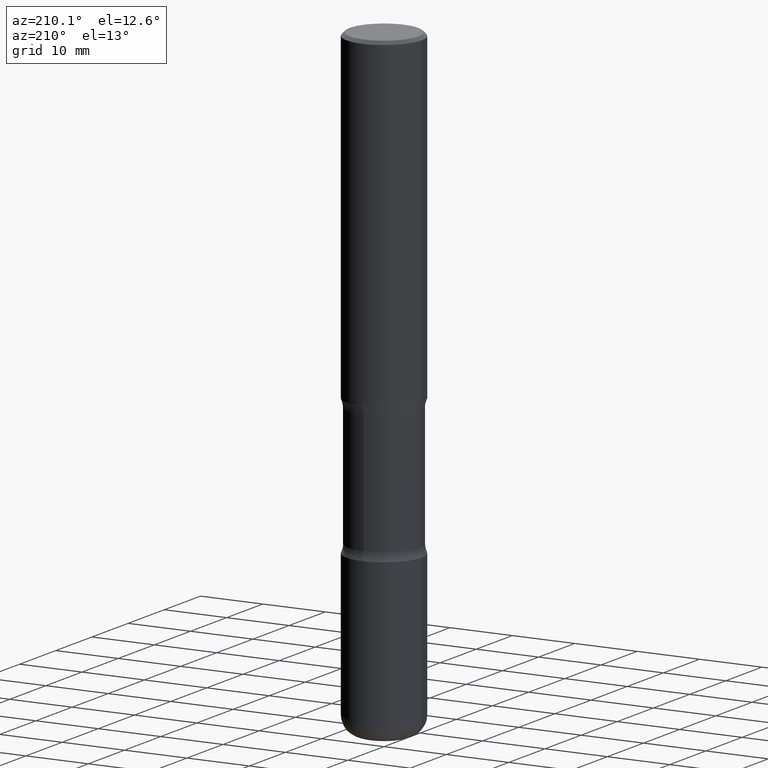
[diagram: clean part render]
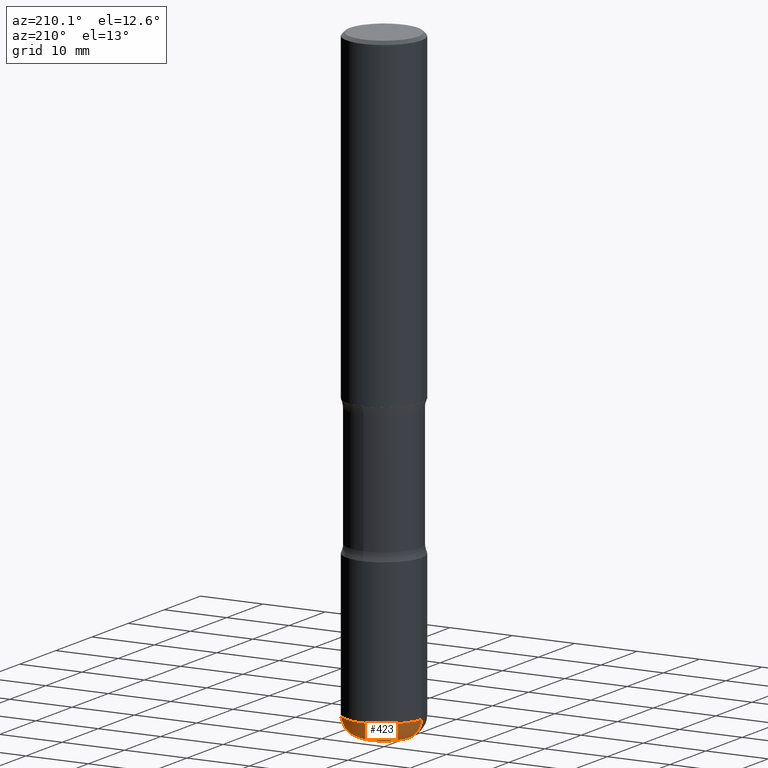
[diagram: same view with one face highlighted and labeled with its STEP entity id]
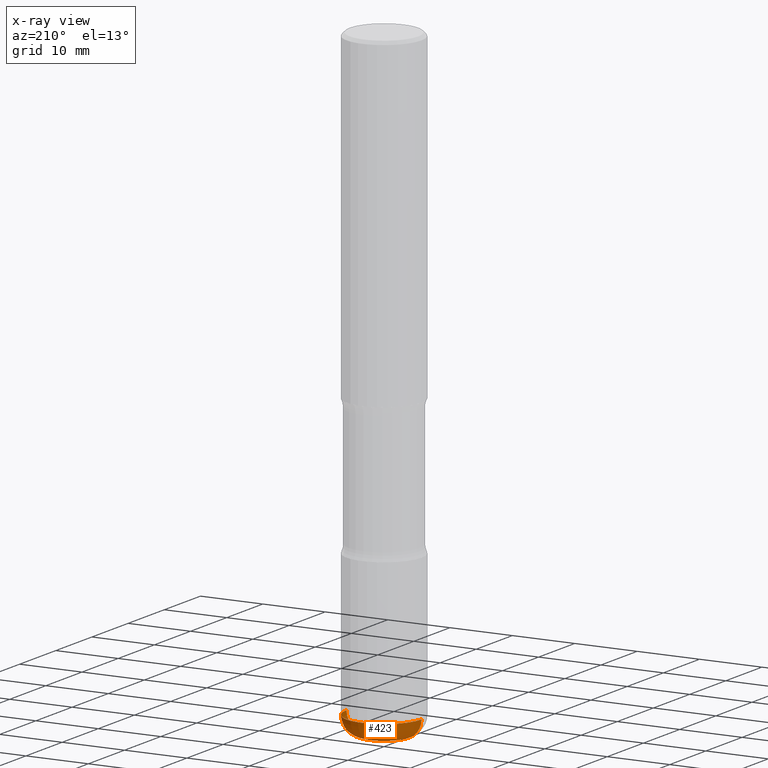
[diagram: x-ray of the same camera — body ghosted, the highlighted face saturated]
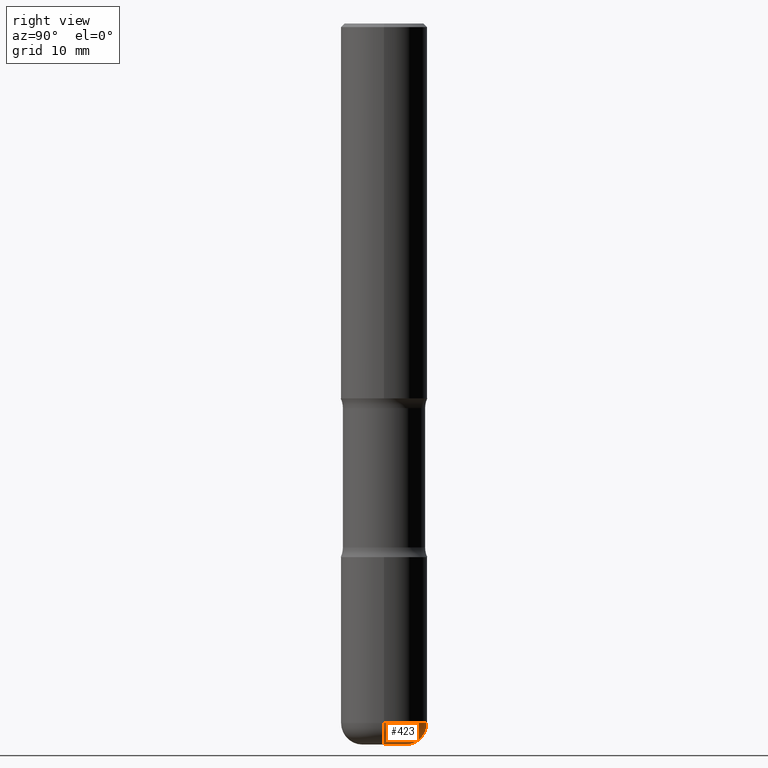
[diagram: same view with one face highlighted and labeled with its STEP entity id]
A machine part, auxiliary view. The second image highlights one B-rep face of the part: STEP entity #423.
The next image is the same camera in x-ray: the body ghosted, the highlighted face saturated — about 0% of this face is hidden behind the body in this view.
A second angle (right view) of the same face is appended — the face is thin or edge-on in the first view.
In plain terms, the highlighted toroidal blend (fillet) surface has major radius 2.9997 mm and minor (blend) radius 2.9997 mm.
Its self-contained STEP definition (entity closure, byte-faithful):
#12 = EDGE_CURVE ( 'NONE', #464, #528, #516, .T. ) ;
#37 = ORIENTED_EDGE ( 'NONE', *, *, #104, .F. ) ;
#58 = CIRCLE ( 'NONE', #374, 0.1180999999999999828 ) ;
#62 = DIRECTION ( 'NONE',  ( 1.000000000000000000, -6.982962677686266711E-15, 0.000000000000000000 ) ) ;
#64 = CARTESIAN_POINT ( 'NONE',  ( 0.1181000000000002326, -1.457064992326021168E-14, -3.936999999999998945 ) ) ;
#84 = DIRECTION ( 'NONE',  ( 1.000000000000000000, -6.982962677686273810E-15, 0.000000000000000000 ) ) ;
#94 = DIRECTION ( 'NONE',  ( -2.445468806185136597E-29, 3.491481338843145583E-15, 1.000000000000000000 ) ) ;
#104 = EDGE_CURVE ( 'NONE', #135, #464, #146, .T. ) ;
#135 = VERTEX_POINT ( 'NONE', #64 ) ;
#140 = EDGE_LOOP ( 'NONE', ( #502, #259, #308, #37 ) ) ;
#146 = CIRCLE ( 'NONE', #283, 0.1180999999999999828 ) ;
#157 = CARTESIAN_POINT ( 'NONE',  ( -0.1181000000000002187, -1.249446711397540556E-14, -3.818899999999998851 ) ) ;
#161 = DIRECTION ( 'NONE',  ( -2.445468806185136597E-29, 3.491481338843145583E-15, 1.000000000000000000 ) ) ;
#199 = CARTESIAN_POINT ( 'NONE',  ( 0.2362000000000002153, -1.498299386937758423E-14, -3.818899999999998851 ) ) ;
#211 = EDGE_CURVE ( 'NONE', #135, #339, #403, .T. ) ;
#218 = AXIS2_PLACEMENT_3D ( 'NONE', #462, #161, #336 ) ;
#259 = ORIENTED_EDGE ( 'NONE', *, *, #411, .T. ) ;
#283 = AXIS2_PLACEMENT_3D ( 'NONE', #342, #482, #84 ) ;
#285 = DIRECTION ( 'NONE',  ( 7.105427357601001859E-15, 1.000000000000000000, -3.491481338843145583E-15 ) ) ;
#300 = DIRECTION ( 'NONE',  ( 1.000000000000000000, -6.982962677686275388E-15, 0.000000000000000000 ) ) ;
#308 = ORIENTED_EDGE ( 'NONE', *, *, #12, .F. ) ;
#310 = CARTESIAN_POINT ( 'NONE',  ( -0.1181000000000002326, -1.228106360156775550E-14, -3.936999999999998945 ) ) ;
#312 = CARTESIAN_POINT ( 'NONE',  ( 9.339000823940415305E-29, -1.333361808490808613E-14, -3.818899999999998851 ) ) ;
#325 = AXIS2_PLACEMENT_3D ( 'NONE', #312, #94, #62 ) ;
#330 = CARTESIAN_POINT ( 'NONE',  ( -0.2362000000000002153, -1.165531614304272658E-14, -3.818899999999998851 ) ) ;
#336 = DIRECTION ( 'NONE',  ( 1.000000000000000000, -6.982962677686266711E-15, 4.883557194083113462E-29 ) ) ;
#339 = VERTEX_POINT ( 'NONE', #310 ) ;
#342 = CARTESIAN_POINT ( 'NONE',  ( 0.1181000000000002187, -1.415830597714283439E-14, -3.818899999999998851 ) ) ;
#346 = TOROIDAL_SURFACE ( 'NONE', #218, 0.1181000000000002187, 0.1180999999999999966 ) ;
#373 = FACE_OUTER_BOUND ( 'NONE', #140, .T. ) ;
#374 = AXIS2_PLACEMENT_3D ( 'NONE', #157, #285, #470 ) ;
#391 = DIRECTION ( 'NONE',  ( -2.445468806185136597E-29, 3.491481338843145583E-15, 1.000000000000000000 ) ) ;
#403 = CIRCLE ( 'NONE', #478, 0.1181000000000002326 ) ;
#411 = EDGE_CURVE ( 'NONE', #339, #528, #58, .T. ) ;
#423 = ADVANCED_FACE ( 'NONE', ( #373 ), #346, .T. ) ;
#431 = CARTESIAN_POINT ( 'NONE',  ( 9.627810689950880306E-29, -1.374596203102546026E-14, -3.936999999999998945 ) ) ;
#462 = CARTESIAN_POINT ( 'NONE',  ( 9.339000823940415305E-29, -1.333361808490808613E-14, -3.818899999999998851 ) ) ;
#464 = VERTEX_POINT ( 'NONE', #199 ) ;
#470 = DIRECTION ( 'NONE',  ( -1.000000000000000000, 7.105427357601005014E-15, 0.000000000000000000 ) ) ;
#478 = AXIS2_PLACEMENT_3D ( 'NONE', #431, #391, #300 ) ;
#482 = DIRECTION ( 'NONE',  ( -6.982962677686266711E-15, -1.000000000000000000, 3.491481338843145583E-15 ) ) ;
#502 = ORIENTED_EDGE ( 'NONE', *, *, #211, .T. ) ;
#516 = CIRCLE ( 'NONE', #325, 0.2362000000000002153 ) ;
#528 = VERTEX_POINT ( 'NONE', #330 ) ;